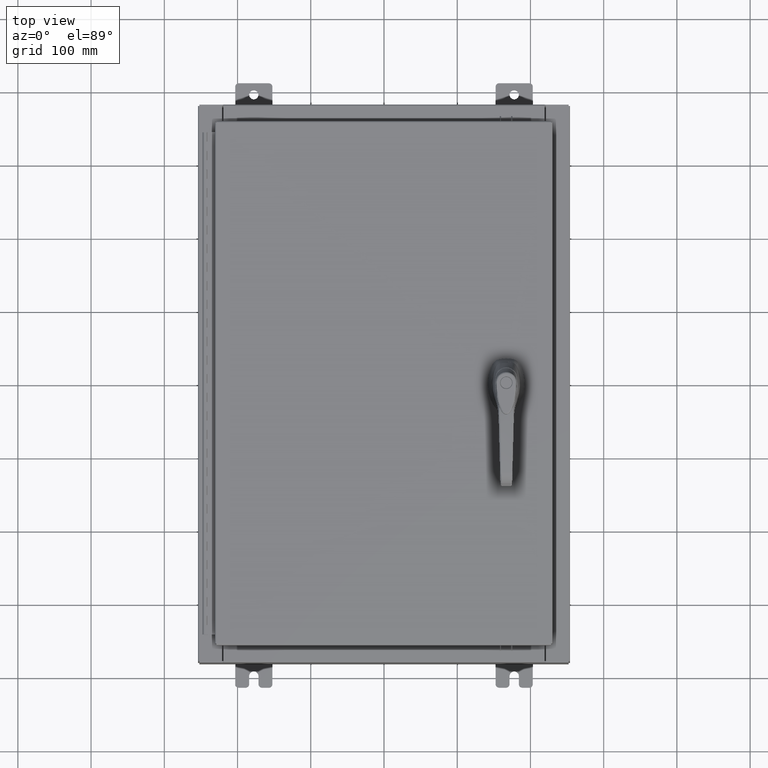
[diagram: clean part render]
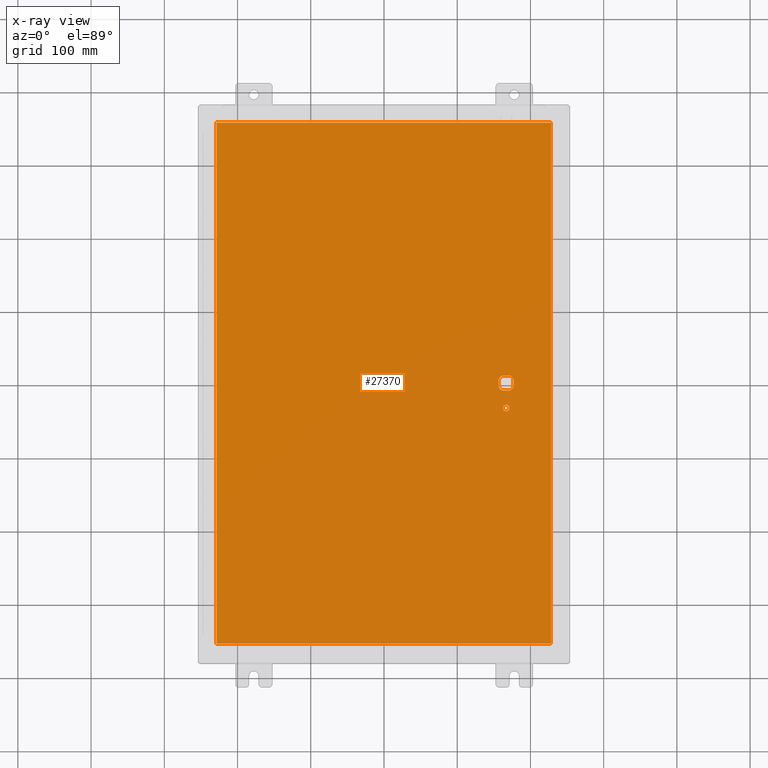
[diagram: x-ray — body ghosted, one internal face saturated and labeled with its STEP entity id]
A machine part, top view, then the same camera in x-ray: the body is ghosted and one INTERNAL B-rep face — a face not visible from any outside direction — is saturated and labeled: STEP entity #27370.
In plain terms, the highlighted planar face has unit normal (0, 0, -1).
Its self-contained STEP definition (entity closure, byte-faithful):
#2734 = AXIS2_PLACEMENT_3D ( 'NONE', #11455, #75440, #20643 ) ;
#3099 = VECTOR ( 'NONE', #15701, 39.37007874015748100 ) ;
#3475 = EDGE_CURVE ( 'NONE', #99207, #83986, #46607, .T. ) ;
#4927 = AXIS2_PLACEMENT_3D ( 'NONE', #37121, #101174, #46333 ) ;
#5267 = EDGE_LOOP ( 'NONE', ( #36735, #111654 ) ) ;
#5291 = VECTOR ( 'NONE', #37415, 39.37007874015748100 ) ;
#8667 = DIRECTION ( 'NONE',  ( -1.000000000000000000, -0.0000000000000000000, -0.0000000000000000000 ) ) ;
#8756 = CARTESIAN_POINT ( 'NONE',  ( -8.990299999999997700, 14.00630000000000100, -0.07470000000000019700 ) ) ;
#9492 = ORIENTED_EDGE ( 'NONE', *, *, #15097, .T. ) ;
#9925 = CARTESIAN_POINT ( 'NONE',  ( 6.406500000000000300, -1.338000000000000100, -0.07470000000000003000 ) ) ;
#11322 = CARTESIAN_POINT ( 'NONE',  ( 6.778227370756310300, 0.4029999999999250300, -0.07470000000000003000 ) ) ;
#11455 = CARTESIAN_POINT ( 'NONE',  ( 6.578000000000000300, -1.338000000000000100, -0.07470000000000003000 ) ) ;
#12563 = CARTESIAN_POINT ( 'NONE',  ( 6.175000000000075300, 0.2002273707563080300, -0.07470000000000003000 ) ) ;
#12742 = CARTESIAN_POINT ( 'NONE',  ( 6.778227370756310300, -0.4029999999999252000, -0.07470000000000003000 ) ) ;
#14478 = ORIENTED_EDGE ( 'NONE', *, *, #108984, .T. ) ;
#14583 = ORIENTED_EDGE ( 'NONE', *, *, #45015, .T. ) ;
#15097 = EDGE_CURVE ( 'NONE', #118506, #99207, #19011, .T. ) ;
#15701 = DIRECTION ( 'NONE',  ( 0.0000000000000000000, -1.000000000000000000, 0.0000000000000000000 ) ) ;
#16588 = ORIENTED_EDGE ( 'NONE', *, *, #70957, .F. ) ;
#19011 = LINE ( 'NONE', #88095, #113481 ) ;
#20117 = DIRECTION ( 'NONE',  ( -0.0000000000000000000, -0.0000000000000000000, 1.000000000000000000 ) ) ;
#20643 = DIRECTION ( 'NONE',  ( -1.000000000000000000, 0.0000000000000000000, 0.0000000000000000000 ) ) ;
#20644 = DIRECTION ( 'NONE',  ( -0.0000000000000000000, -0.0000000000000000000, 1.000000000000000000 ) ) ;
#21629 = AXIS2_PLACEMENT_3D ( 'NONE', #39793, #95457, #77443 ) ;
#24629 = DIRECTION ( 'NONE',  ( -1.000000000000000000, 0.0000000000000000000, 0.0000000000000000000 ) ) ;
#26726 = LINE ( 'NONE', #30597, #5291 ) ;
#27123 = DIRECTION ( 'NONE',  ( 0.0000000000000000000, -1.000000000000000000, 0.0000000000000000000 ) ) ;
#27370 = ADVANCED_FACE ( 'NONE', ( #61530, #82966, #85850 ), #58989, .T. ) ;
#28492 = DIRECTION ( 'NONE',  ( -0.0000000000000000000, -0.0000000000000000000, 1.000000000000000000 ) ) ;
#28927 = DIRECTION ( 'NONE',  ( -0.0000000000000000000, -0.0000000000000000000, 1.000000000000000000 ) ) ;
#29713 = CARTESIAN_POINT ( 'NONE',  ( 6.377772629243691100, 0.4029999999999252000, -0.07470000000000003000 ) ) ;
#30597 = CARTESIAN_POINT ( 'NONE',  ( 8.990300000000001300, -14.00629999999999800, -0.07470000000000076600 ) ) ;
#31036 = CARTESIAN_POINT ( 'NONE',  ( 6.377772629243691100, -0.4029999999999250300, -0.07470000000000003000 ) ) ;
#32552 = ORIENTED_EDGE ( 'NONE', *, *, #113853, .F. ) ;
#33792 = EDGE_CURVE ( 'NONE', #60543, #102319, #116354, .T. ) ;
#34479 = EDGE_CURVE ( 'NONE', #88015, #83986, #100474, .T. ) ;
#36735 = ORIENTED_EDGE ( 'NONE', *, *, #100079, .T. ) ;
#37121 = CARTESIAN_POINT ( 'NONE',  ( 6.578000000000000300, 0.0000000000000000000, -0.07470000000000003000 ) ) ;
#37415 = DIRECTION ( 'NONE',  ( 0.0000000000000000000, 1.000000000000000000, 0.0000000000000000000 ) ) ;
#39793 = CARTESIAN_POINT ( 'NONE',  ( 0.0000000000000000000, 0.0000000000000000000, -0.07470000000000000300 ) ) ;
#40563 = ORIENTED_EDGE ( 'NONE', *, *, #34479, .F. ) ;
#40742 = CIRCLE ( 'NONE', #2734, 0.1715000000000000700 ) ;
#43314 = CIRCLE ( 'NONE', #110416, 0.4499999999999156900 ) ;
#45015 = EDGE_CURVE ( 'NONE', #109023, #91207, #100747, .T. ) ;
#45473 = LINE ( 'NONE', #118261, #66921 ) ;
#46254 = ORIENTED_EDGE ( 'NONE', *, *, #33792, .F. ) ;
#46333 = DIRECTION ( 'NONE',  ( -1.000000000000000000, 0.0000000000000000000, 0.0000000000000000000 ) ) ;
#46607 = CIRCLE ( 'NONE', #4927, 0.4499999999999156900 ) ;
#47878 = VERTEX_POINT ( 'NONE', #12563 ) ;
#48022 = CARTESIAN_POINT ( 'NONE',  ( 6.980999999999926200, -0.2002273707563080300, -0.07470000000000003000 ) ) ;
#48610 = VERTEX_POINT ( 'NONE', #9925 ) ;
#49688 = AXIS2_PLACEMENT_3D ( 'NONE', #75442, #20644, #84623 ) ;
#52063 = VECTOR ( 'NONE', #24629, 39.37007874015748100 ) ;
#53211 = EDGE_CURVE ( 'NONE', #88015, #109023, #76796, .T. ) ;
#56205 = LINE ( 'NONE', #8756, #102065 ) ;
#57806 = ORIENTED_EDGE ( 'NONE', *, *, #95828, .F. ) ;
#58989 = PLANE ( 'NONE',  #21629 ) ;
#59519 = CARTESIAN_POINT ( 'NONE',  ( 6.175000000000075300, -0.2002273707563079800, -0.07470000000000003000 ) ) ;
#60543 = VERTEX_POINT ( 'NONE', #70749 ) ;
#60852 = DIRECTION ( 'NONE',  ( 1.000000000000000000, 0.0000000000000000000, 0.0000000000000000000 ) ) ;
#61530 = FACE_BOUND ( 'NONE', #5267, .T. ) ;
#63058 = AXIS2_PLACEMENT_3D ( 'NONE', #74895, #20117, #84107 ) ;
#63176 = CARTESIAN_POINT ( 'NONE',  ( 6.175000000000075300, 0.0000000000000000000, -0.07470000000000003000 ) ) ;
#63817 = VERTEX_POINT ( 'NONE', #108481 ) ;
#64950 = CARTESIAN_POINT ( 'NONE',  ( -8.990299999999996000, -14.00629999999999800, -0.07469999999999800400 ) ) ;
#65021 = CARTESIAN_POINT ( 'NONE',  ( 8.990299999999999500, 14.00629999999999800, -0.07470000000000000300 ) ) ;
#66921 = VECTOR ( 'NONE', #8667, 39.37007874015748100 ) ;
#67876 = EDGE_LOOP ( 'NONE', ( #99713, #40563, #91506, #14583, #70142, #81664, #14478, #9492 ) ) ;
#70142 = ORIENTED_EDGE ( 'NONE', *, *, #71533, .T. ) ;
#70749 = CARTESIAN_POINT ( 'NONE',  ( -8.990299999999996000, -14.00629999999999600, -0.07470000000000000300 ) ) ;
#70957 = EDGE_CURVE ( 'NONE', #86249, #60543, #56205, .T. ) ;
#71533 = EDGE_CURVE ( 'NONE', #91207, #47878, #43314, .T. ) ;
#73548 = CARTESIAN_POINT ( 'NONE',  ( -8.990299999999997700, 14.00629999999999800, -0.07470000000000000300 ) ) ;
#74895 = CARTESIAN_POINT ( 'NONE',  ( 6.578000000000000300, 0.0000000000000000000, -0.07470000000000003000 ) ) ;
#75440 = DIRECTION ( 'NONE',  ( -0.0000000000000000000, -0.0000000000000000000, 1.000000000000000000 ) ) ;
#75442 = CARTESIAN_POINT ( 'NONE',  ( 6.578000000000000300, -1.338000000000000100, -0.07470000000000003000 ) ) ;
#76796 = CIRCLE ( 'NONE', #112494, 0.4499999999999156900 ) ;
#77443 = DIRECTION ( 'NONE',  ( -1.000000000000000000, 0.0000000000000000000, -0.0000000000000000000 ) ) ;
#77655 = LINE ( 'NONE', #63176, #99147 ) ;
#79637 = CARTESIAN_POINT ( 'NONE',  ( 6.980999999999926200, 0.0000000000000000000, -0.07470000000000003000 ) ) ;
#81664 = ORIENTED_EDGE ( 'NONE', *, *, #90280, .T. ) ;
#82966 = FACE_OUTER_BOUND ( 'NONE', #88954, .T. ) ;
#83223 = VERTEX_POINT ( 'NONE', #65021 ) ;
#83263 = CARTESIAN_POINT ( 'NONE',  ( 6.578000000000000300, 0.0000000000000000000, -0.07470000000000003000 ) ) ;
#83715 = CARTESIAN_POINT ( 'NONE',  ( 6.578000000000000300, 0.0000000000000000000, -0.07470000000000003000 ) ) ;
#83754 = DIRECTION ( 'NONE',  ( 1.000000000000000000, -0.0000000000000000000, -0.0000000000000000000 ) ) ;
#83986 = VERTEX_POINT ( 'NONE', #48022 ) ;
#84107 = DIRECTION ( 'NONE',  ( -1.000000000000000000, 8.881784197001256300E-016, 0.0000000000000000000 ) ) ;
#84623 = DIRECTION ( 'NONE',  ( -1.000000000000000000, 0.0000000000000000000, 0.0000000000000000000 ) ) ;
#85850 = FACE_BOUND ( 'NONE', #67876, .T. ) ;
#86249 = VERTEX_POINT ( 'NONE', #73548 ) ;
#86278 = CIRCLE ( 'NONE', #49688, 0.1715000000000000700 ) ;
#88015 = VERTEX_POINT ( 'NONE', #96064 ) ;
#88095 = CARTESIAN_POINT ( 'NONE',  ( 0.0000000000000000000, -0.4029999999999252000, -0.07470000000000003000 ) ) ;
#88954 = EDGE_LOOP ( 'NONE', ( #32552, #46254, #16588, #57806 ) ) ;
#90280 = EDGE_CURVE ( 'NONE', #47878, #92065, #77655, .T. ) ;
#90811 = DIRECTION ( 'NONE',  ( 0.0000000000000000000, -1.000000000000000000, 0.0000000000000000000 ) ) ;
#91207 = VERTEX_POINT ( 'NONE', #29713 ) ;
#91506 = ORIENTED_EDGE ( 'NONE', *, *, #53211, .T. ) ;
#91573 = CIRCLE ( 'NONE', #63058, 0.4499999999999156900 ) ;
#91979 = VECTOR ( 'NONE', #83754, 39.37007874015748100 ) ;
#92065 = VERTEX_POINT ( 'NONE', #59519 ) ;
#92518 = DIRECTION ( 'NONE',  ( -1.000000000000000000, 0.0000000000000000000, 0.0000000000000000000 ) ) ;
#92967 = DIRECTION ( 'NONE',  ( -1.000000000000000000, 0.0000000000000000000, 0.0000000000000000000 ) ) ;
#95457 = DIRECTION ( 'NONE',  ( 0.0000000000000000000, 0.0000000000000000000, -1.000000000000000000 ) ) ;
#95534 = CARTESIAN_POINT ( 'NONE',  ( 8.990300000000001300, -14.00629999999999800, -0.07470000000000000300 ) ) ;
#95828 = EDGE_CURVE ( 'NONE', #83223, #86249, #45473, .T. ) ;
#96064 = CARTESIAN_POINT ( 'NONE',  ( 6.980999999999926200, 0.2002273707563080300, -0.07470000000000003000 ) ) ;
#99147 = VECTOR ( 'NONE', #90811, 39.37007874015748100 ) ;
#99207 = VERTEX_POINT ( 'NONE', #12742 ) ;
#99713 = ORIENTED_EDGE ( 'NONE', *, *, #3475, .T. ) ;
#100079 = EDGE_CURVE ( 'NONE', #63817, #48610, #40742, .T. ) ;
#100474 = LINE ( 'NONE', #79637, #3099 ) ;
#100747 = LINE ( 'NONE', #116659, #52063 ) ;
#101174 = DIRECTION ( 'NONE',  ( -0.0000000000000000000, -0.0000000000000000000, 1.000000000000000000 ) ) ;
#102065 = VECTOR ( 'NONE', #27123, 39.37007874015748100 ) ;
#102319 = VERTEX_POINT ( 'NONE', #95534 ) ;
#108481 = CARTESIAN_POINT ( 'NONE',  ( 6.749500000000001200, -1.338000000000000100, -0.07470000000000003000 ) ) ;
#108984 = EDGE_CURVE ( 'NONE', #92065, #118506, #91573, .T. ) ;
#109023 = VERTEX_POINT ( 'NONE', #11322 ) ;
#110416 = AXIS2_PLACEMENT_3D ( 'NONE', #83715, #28927, #92967 ) ;
#111654 = ORIENTED_EDGE ( 'NONE', *, *, #118114, .T. ) ;
#112494 = AXIS2_PLACEMENT_3D ( 'NONE', #83263, #28492, #92518 ) ;
#113481 = VECTOR ( 'NONE', #60852, 39.37007874015748100 ) ;
#113853 = EDGE_CURVE ( 'NONE', #102319, #83223, #26726, .T. ) ;
#116354 = LINE ( 'NONE', #64950, #91979 ) ;
#116659 = CARTESIAN_POINT ( 'NONE',  ( 0.0000000000000000000, 0.4029999999999252000, -0.07470000000000003000 ) ) ;
#118114 = EDGE_CURVE ( 'NONE', #48610, #63817, #86278, .T. ) ;
#118261 = CARTESIAN_POINT ( 'NONE',  ( 8.990300000000001300, 14.00629999999999800, -0.07470000000000019700 ) ) ;
#118506 = VERTEX_POINT ( 'NONE', #31036 ) ;